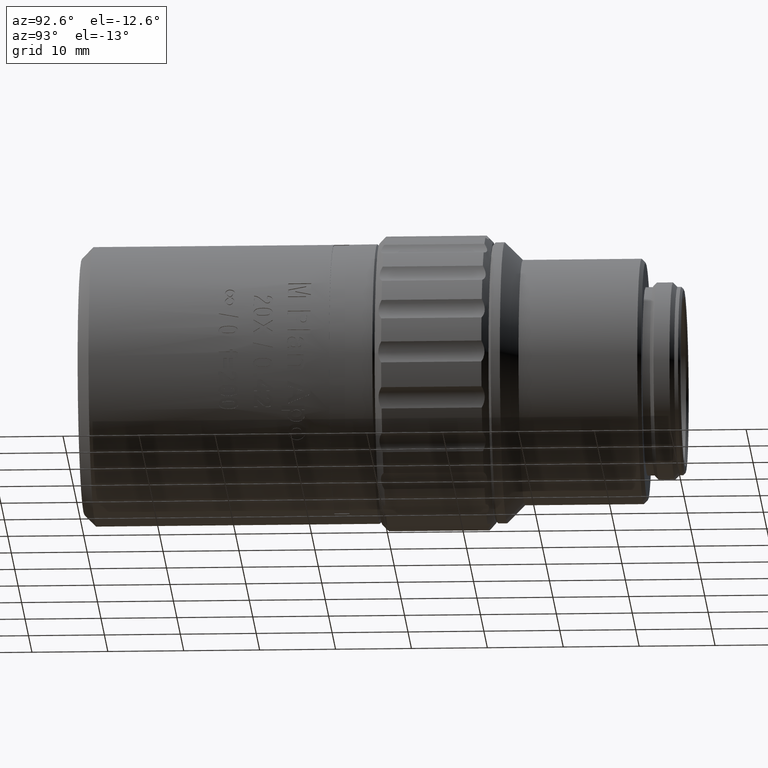
[diagram: clean part render]
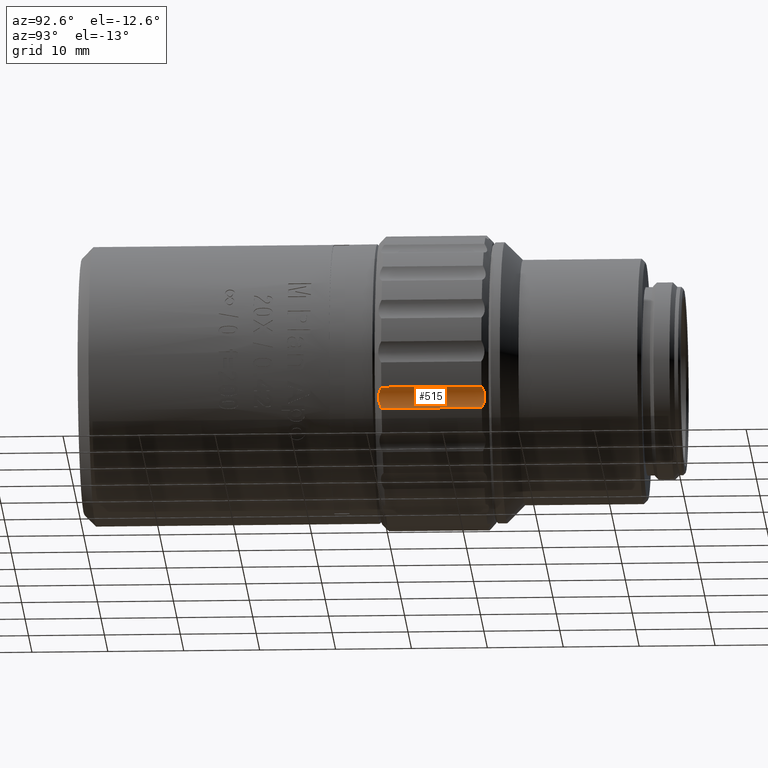
[diagram: same view with one face highlighted and labeled with its STEP entity id]
A machine part, auxiliary view. The second image highlights one B-rep face of the part: STEP entity #515.
In plain terms, the highlighted cylindrical surface (edge-blend (fillet) strip) has radius 3 mm, axis along (0, -1, 0).
Its self-contained STEP definition (entity closure, byte-faithful):
#131 = CARTESIAN_POINT ( 'NONE',  ( 15.91278037016512492, -17.94117018010630460, -6.474921670273226404 ) ) ;
#328 = CARTESIAN_POINT ( 'NONE',  ( 15.86275120058871302, -18.41765823909164368, -5.148877161297408023 ) ) ;
#515 = ADVANCED_FACE ( 'NONE', ( #14109 ), #3517, .F. ) ;
#529 = CARTESIAN_POINT ( 'NONE',  ( 15.97769583103548641, -18.00129503028274058, -6.107818678525957168 ) ) ;
#791 = CARTESIAN_POINT ( 'NONE',  ( 15.58656534416920003, -17.96805794275550028, -7.314977359212569752 ) ) ;
#1083 = CARTESIAN_POINT ( 'NONE',  ( 2.158623703414730866, -17.92228157723039317, -6.809194788647978669 ) ) ;
#1286 = CARTESIAN_POINT ( 'NONE',  ( 2.160308775362173250, -18.51273999061287512, -4.996375288639503864 ) ) ;
#1680 = VERTEX_POINT ( 'NONE', #6635 ) ;
#2028 = CARTESIAN_POINT ( 'NONE',  ( 15.65076345274263936, -18.74924178145512954, -4.727543482912896167 ) ) ;
#2185 = VECTOR ( 'NONE', #9124, 1000.000000000000000 ) ;
#2402 = CARTESIAN_POINT ( 'NONE',  ( 2.060350318173398865, -18.32057504221139865, -5.307233572249027809 ) ) ;
#2508 = B_SPLINE_CURVE_WITH_KNOTS ( 'NONE', 3,
 ( #14220, #6634, #3623, #17547, #1083, #4200, #14909, #7105, #10303, #8606, #8805, #13497, #11811, #11911, #2402, #8910, #19635, #1286, #8513, #16409 ),
 .UNSPECIFIED., .F., .F.,
 ( 4, 2, 1, 2, 2, 2, 2, 1, 2, 2, 4 ),
 ( 0.000000000000000000, 0.1250000000000017486, 0.1875000000000021372, 0.2187500000000024147, 0.2500000000000026645, 0.5000000000000015543, 0.6250000000000005551, 0.6874999999999996669, 0.7187499999999992228, 0.7499999999999986677, 1.000000000000000000 ),
 .UNSPECIFIED. ) ;
#2769 = ORIENTED_EDGE ( 'NONE', *, *, #7181, .F. ) ;
#3163 = CARTESIAN_POINT ( 'NONE',  ( 15.95104795996301839, -18.25108346217239941, -5.413670966214949587 ) ) ;
#3517 = CYLINDRICAL_SURFACE ( 'NONE', #3949, 3.000000000000000000 ) ;
#3623 = CARTESIAN_POINT ( 'NONE',  ( 2.265811734803358402, -17.93370341329758588, -7.076964716769463593 ) ) ;
#3949 = AXIS2_PLACEMENT_3D ( 'NONE', #11416, #6915, #11315 ) ;
#4200 = CARTESIAN_POINT ( 'NONE',  ( 2.129103978433961597, -17.92435104057114614, -6.719764041585666092 ) ) ;
#4453 = EDGE_CURVE ( 'NONE', #14825, #11364, #5206, .T. ) ;
#4752 = CARTESIAN_POINT ( 'NONE',  ( 15.98655551258591423, -18.14635725250635545, -5.636578412429031459 ) ) ;
#5052 = CARTESIAN_POINT ( 'NONE',  ( 15.58656534416920003, -18.83610004420150119, -4.643418474017389386 ) ) ;
#5135 = CARTESIAN_POINT ( 'NONE',  ( 15.81282191296279294, -17.91391697443681252, -6.839363027247792104 ) ) ;
#5206 = B_SPLINE_CURVE_WITH_KNOTS ( 'NONE', 3,
 ( #12742, #2028, #7946, #14141, #8136, #14244, #328, #14046, #3163, #4752, #15558, #529, #10866, #6548, #131, #7753, #18863, #5135, #13852, #9259 ),
 .UNSPECIFIED., .F., .F.,
 ( 4, 2, 1, 2, 2, 2, 2, 1, 2, 2, 4 ),
 ( 0.000000000000000000, 0.1249999999999994171, 0.1874999999999975298, 0.2187499999999971134, 0.2499999999999967248, 0.4999999999999952260, 0.6249999999999940048, 0.6874999999999937828, 0.7187499999999940048, 0.7499999999999942268, 1.000000000000000000 ),
 .UNSPECIFIED. ) ;
#5337 = VECTOR ( 'NONE', #18618, 1000.000000000000000 ) ;
#6403 = CARTESIAN_POINT ( 'NONE',  ( 16.48656534416710073, -17.96805794275550028, -7.314977359212580410 ) ) ;
#6548 = CARTESIAN_POINT ( 'NONE',  ( 15.93442008606983684, -17.95173358617629233, -6.381691705515963875 ) ) ;
#6634 = CARTESIAN_POINT ( 'NONE',  ( 2.322367235599962498, -17.94723557167080585, -7.195864791489436030 ) ) ;
#6635 = CARTESIAN_POINT ( 'NONE',  ( 2.386565344169410352, -17.96805794275550028, -7.314977359212569752 ) ) ;
#6915 = DIRECTION ( 'NONE',  ( -1.000000000000000000, 0.000000000000000000, 0.000000000000000000 ) ) ;
#7105 = CARTESIAN_POINT ( 'NONE',  ( 2.101963643233319079, -17.92811043536174864, -6.631909949661558556 ) ) ;
#7181 = EDGE_CURVE ( 'NONE', #13157, #14825, #12123, .T. ) ;
#7753 = CARTESIAN_POINT ( 'NONE',  ( 15.89724397480563312, -17.93503729144764236, -6.537396464219421333 ) ) ;
#7946 = CARTESIAN_POINT ( 'NONE',  ( 15.70731895354120944, -18.66840632494097818, -4.815781660872775483 ) ) ;
#8136 = CARTESIAN_POINT ( 'NONE',  ( 15.81450698492906426, -18.50177465069933547, -5.025698496510114133 ) ) ;
#8513 = CARTESIAN_POINT ( 'NONE',  ( 2.258134561409696150, -18.66233675239180556, -4.811713786483806210 ) ) ;
#8606 = CARTESIAN_POINT ( 'NONE',  ( 1.986575175752571365, -17.99380906750061015, -6.106073450046906714 ) ) ;
#8805 = CARTESIAN_POINT ( 'NONE',  ( 1.986560428377384335, -18.10820618066151866, -5.753947614662607180 ) ) ;
#8910 = CARTESIAN_POINT ( 'NONE',  ( 2.075886713532888006, -18.35233519358490639, -5.253085580714230041 ) ) ;
#9124 = DIRECTION ( 'NONE',  ( 1.000000000000000000, 0.000000000000000000, 0.000000000000000000 ) ) ;
#9259 = CARTESIAN_POINT ( 'NONE',  ( 15.58656534416920003, -17.96805794275550028, -7.314977359212569752 ) ) ;
#9893 = CARTESIAN_POINT ( 'NONE',  ( 2.386565344169410352, -18.83610004420150119, -4.643418474017389386 ) ) ;
#10303 = CARTESIAN_POINT ( 'NONE',  ( 2.022082728375492966, -17.94751264135271995, -6.347965883816313770 ) ) ;
#10866 = CARTESIAN_POINT ( 'NONE',  ( 15.95106517057106110, -17.96640933254283112, -6.289844231537191632 ) ) ;
#10959 = EDGE_LOOP ( 'NONE', ( #12891, #12151, #13715, #2769 ) ) ;
#11315 = DIRECTION ( 'NONE',  ( 0.000000000000000000, -0.3090169943749468962, 0.9510565162951537532 ) ) ;
#11364 = VERTEX_POINT ( 'NONE', #791 ) ;
#11416 = CARTESIAN_POINT ( 'NONE',  ( 16.48656534416710073, -20.92324335849339789, -6.798373876248839487 ) ) ;
#11811 = CARTESIAN_POINT ( 'NONE',  ( 2.022065517767441367, -18.23220815643248827, -5.471799567052658908 ) ) ;
#11911 = CARTESIAN_POINT ( 'NONE',  ( 2.038710602268666516, -18.27432181888266172, -5.388867212430445974 ) ) ;
#12123 = LINE ( 'NONE', #18242, #2185 ) ;
#12151 = ORIENTED_EDGE ( 'NONE', *, *, #18796, .F. ) ;
#12742 = CARTESIAN_POINT ( 'NONE',  ( 15.58656534416920003, -18.83610004420150119, -4.643418474017389386 ) ) ;
#12840 = EDGE_CURVE ( 'NONE', #1680, #13157, #2508, .T. ) ;
#12891 = ORIENTED_EDGE ( 'NONE', *, *, #12840, .F. ) ;
#13157 = VERTEX_POINT ( 'NONE', #9893 ) ;
#13497 = CARTESIAN_POINT ( 'NONE',  ( 1.995434857303000298, -18.15343934316413765, -5.639566631496624183 ) ) ;
#13715 = ORIENTED_EDGE ( 'NONE', *, *, #4453, .F. ) ;
#13852 = CARTESIAN_POINT ( 'NONE',  ( 15.71499612691533798, -17.92640198938516960, -7.076688091063360275 ) ) ;
#14046 = CARTESIAN_POINT ( 'NONE',  ( 15.87116704510526510, -18.40228488218183145, -5.172551060934104328 ) ) ;
#14109 = FACE_OUTER_BOUND ( 'NONE', #10959, .T. ) ;
#14141 = CARTESIAN_POINT ( 'NONE',  ( 15.78068829307682108, -18.55586671806449317, -4.954641785745024229 ) ) ;
#14220 = CARTESIAN_POINT ( 'NONE',  ( 2.386565344169410352, -17.96805794275550028, -7.314977359212569752 ) ) ;
#14244 = CARTESIAN_POINT ( 'NONE',  ( 15.84402670990797013, -18.45088280748907650, -5.099265890732679551 ) ) ;
#14825 = VERTEX_POINT ( 'NONE', #5052 ) ;
#14909 = CARTESIAN_POINT ( 'NONE',  ( 2.110379487751723904, -17.92663257329174087, -6.660098769265768937 ) ) ;
#15558 = CARTESIAN_POINT ( 'NONE',  ( 15.98657025996109660, -18.03193208815874016, -5.988695133471624743 ) ) ;
#16409 = CARTESIAN_POINT ( 'NONE',  ( 2.386565344169410352, -18.83610004420150119, -4.643418474017389386 ) ) ;
#16919 = LINE ( 'NONE', #6403, #5337 ) ;
#17547 = CARTESIAN_POINT ( 'NONE',  ( 2.192442395267726774, -17.92427689232575005, -6.898475394685952722 ) ) ;
#18242 = CARTESIAN_POINT ( 'NONE',  ( 16.48656534416710073, -18.83610004420150119, -4.643418474017379616 ) ) ;
#18618 = DIRECTION ( 'NONE',  ( -1.000000000000000000, 0.000000000000000000, 0.000000000000000000 ) ) ;
#18796 = EDGE_CURVE ( 'NONE', #11364, #1680, #16919, .T. ) ;
#18863 = CARTESIAN_POINT ( 'NONE',  ( 15.88844530098025842, -17.93230989372630901, -6.570485306732686936 ) ) ;
#19635 = CARTESIAN_POINT ( 'NONE',  ( 2.084685387359968889, -18.36957781612672491, -5.224713020630995963 ) ) ;